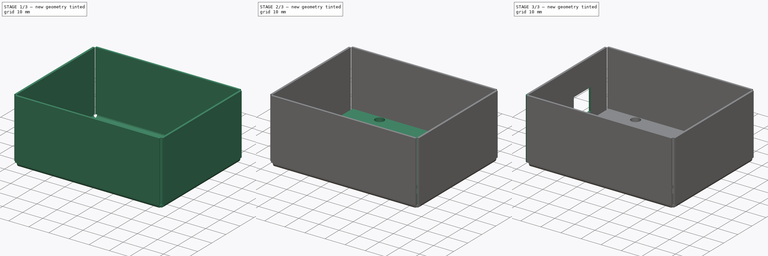
[diagram: build sequence overview — one tinted view per stage of 3, left to right]
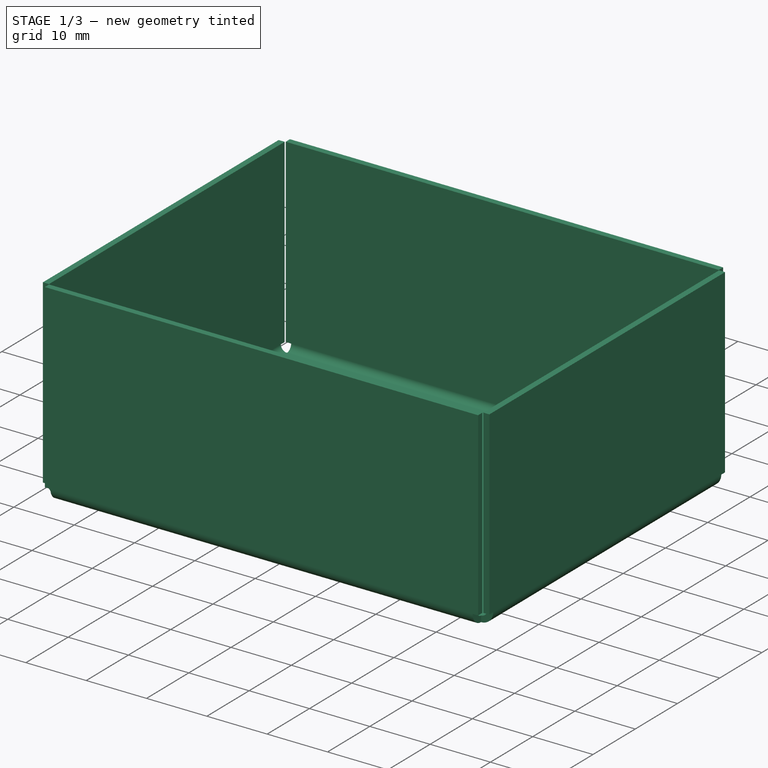
[diagram: stage 1 of 3 — iso view after this stage's code; geometry added in this stage tinted green]
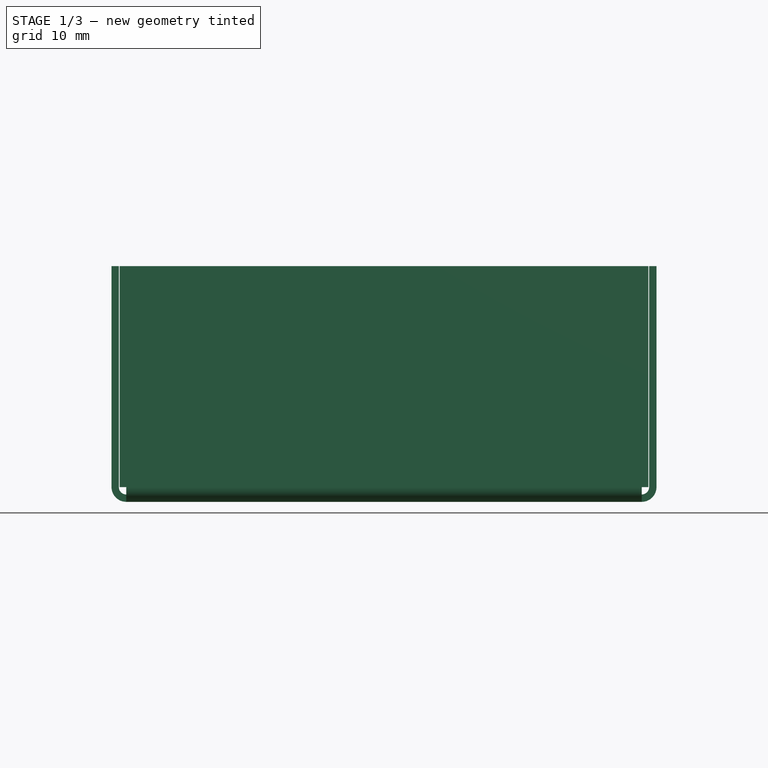
[diagram: stage 1 of 3 — front view after this stage's code; geometry added in this stage tinted green]
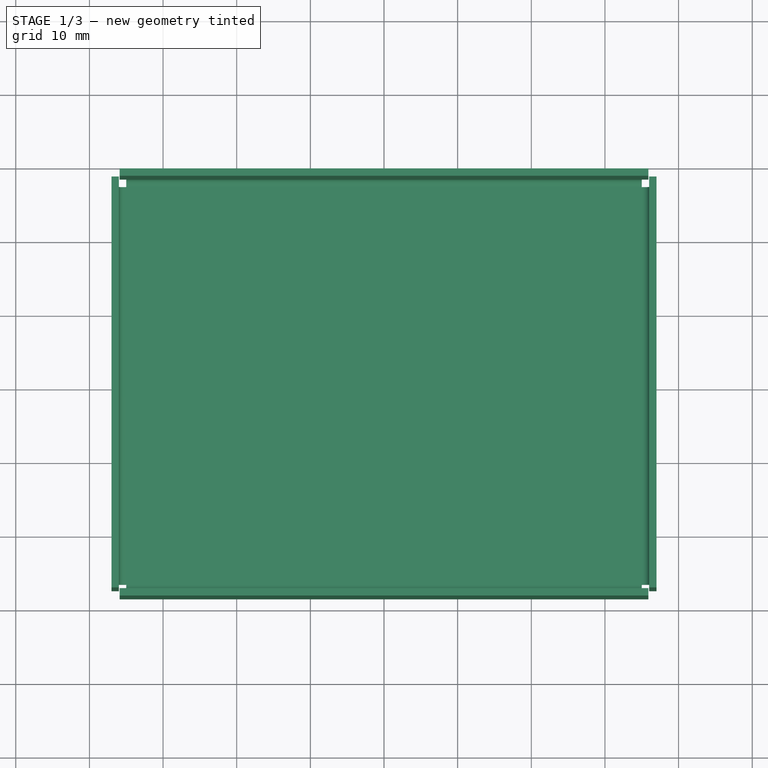
[diagram: stage 1 of 3 — top view after this stage's code; geometry added in this stage tinted green]
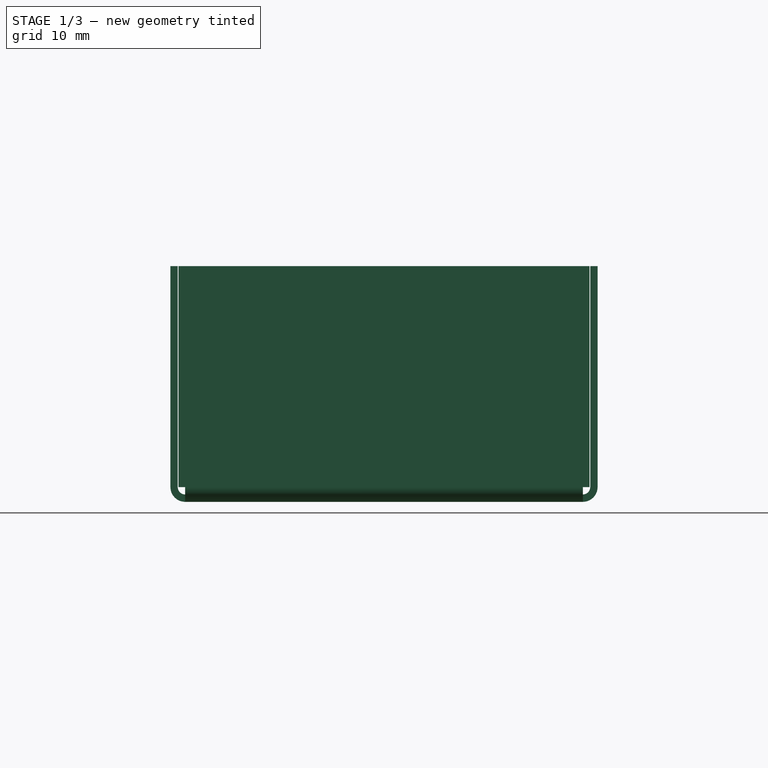
[diagram: stage 1 of 3 — right view after this stage's code; geometry added in this stage tinted green]
FCSTD DOCUMENT  (FreeCAD 0.20R29603 (Git))
Label: Arduino Sheet Metal Enclosure
License: All rights reserved
LicenseURL: http://en.wikipedia.org/wiki/All_rights_reserved
objects: Sketcher::SketchObject×4, PartDesign::Pad×2, PartDesign::FeaturePython×2, PartDesign::Pocket×2, PartDesign::Body×1, App::Part×1
note: 15 computed .brp shape members not serialized (recipe doc carries the construction recipe); baked Part::Feature solids carry a one-line shape summary decoded from their .brp

FEATURE [Sketcher::SketchObject] Sketch
  FullyConstrained = true
  MapMode = 5
  Support = -> [XY_Plane]
  sketch-geometry (4):
    g0: LineSegment StartX=-35 StartY=27.5 StartZ=0 EndX=35 EndY=27.5 EndZ=0
    g1: LineSegment StartX=35 StartY=27.5 StartZ=0 EndX=35 EndY=-26.5 EndZ=0
    g2: LineSegment StartX=35 StartY=-26.5 StartZ=0 EndX=-35 EndY=-26.5 EndZ=0
    g3: LineSegment StartX=-35 StartY=-26.5 StartZ=0 EndX=-35 EndY=27.5 EndZ=0
  constraints (12):
    c: Coincident(g0,g1)
    c: Coincident(g1,g2)
    c: Coincident(g2,g3)
    c: Coincident(g3,g0)
    c: Horizontal(g0)
    c: Horizontal(g2)
    c: Vertical(g1)
    c: Vertical(g3)
    c: DistanceX(g0,g0) = 70
    c: DistanceY(g1,g1) = 54
    c: DistanceY(g1,g-1) = 26.5
    c: DistanceX(g0,g-1) = 35
FEATURE [PartDesign::Pad] Pad
  Direction = (0,0,1)
  Length = 1
  Length2 = 10
  Profile = -> Sketch
  ReferenceAxis = -> Sketch [N_Axis]
  Type = 0
FEATURE [PartDesign::FeaturePython] Bend  # WARN: FeaturePython — macro-defined, semantics opaque (R4)
  AutoMiter = true
  BaseFeature = -> Pad
  BendType = 0
  LengthList = [30]
  LengthSpec = 0
  ReliefFactor = 0.7
  UseReliefFactor = false
  angle = 90
  baseObject = -> Pad [Face3,Face4,Face1,Face2]
  bendAList = [90]
  extend1 = 0
  extend2 = 0
  gap1 = 0
  gap2 = 0
  invert = false
  kfactor = 0.5
  length = 30
  maxExtendDist = 5
  minGap = 0.1
  minReliefGap = 1
  miterangle1 = 0
  miterangle2 = 0
  offset = 0
  radius = 1
  reliefType = 0
  reliefd = 1
  reliefw = 0.8
  sketchflip = false
  sketchinvert = false
  unfold = false
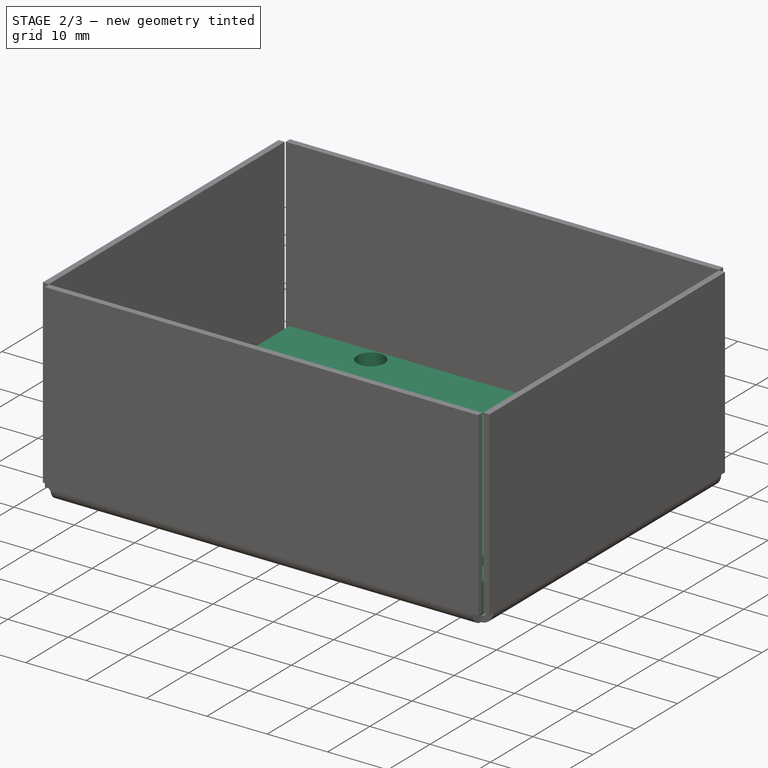
[diagram: stage 2 of 3 — iso view after this stage's code; geometry added in this stage tinted green]
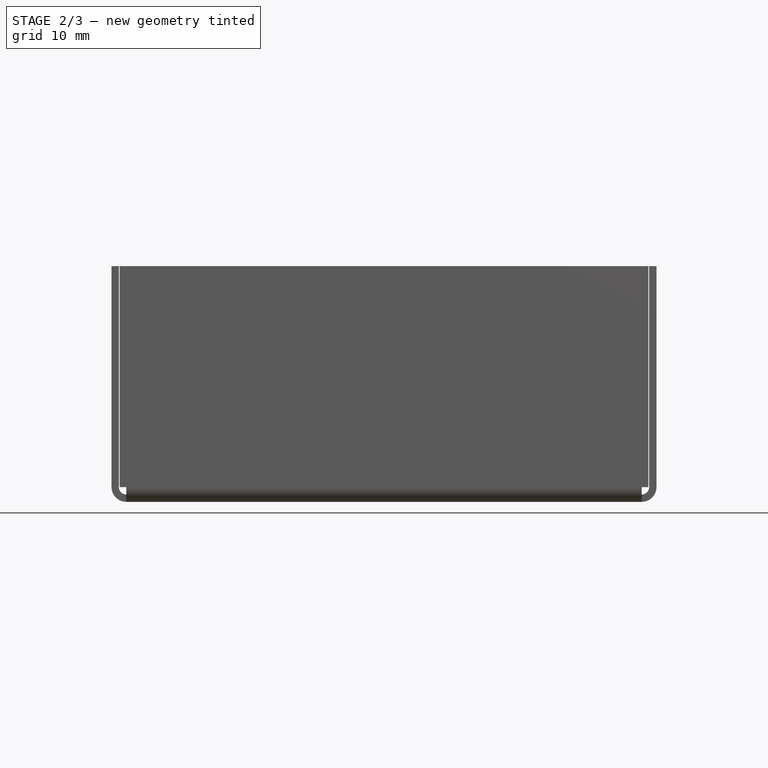
[diagram: stage 2 of 3 — front view after this stage's code; geometry added in this stage tinted green]
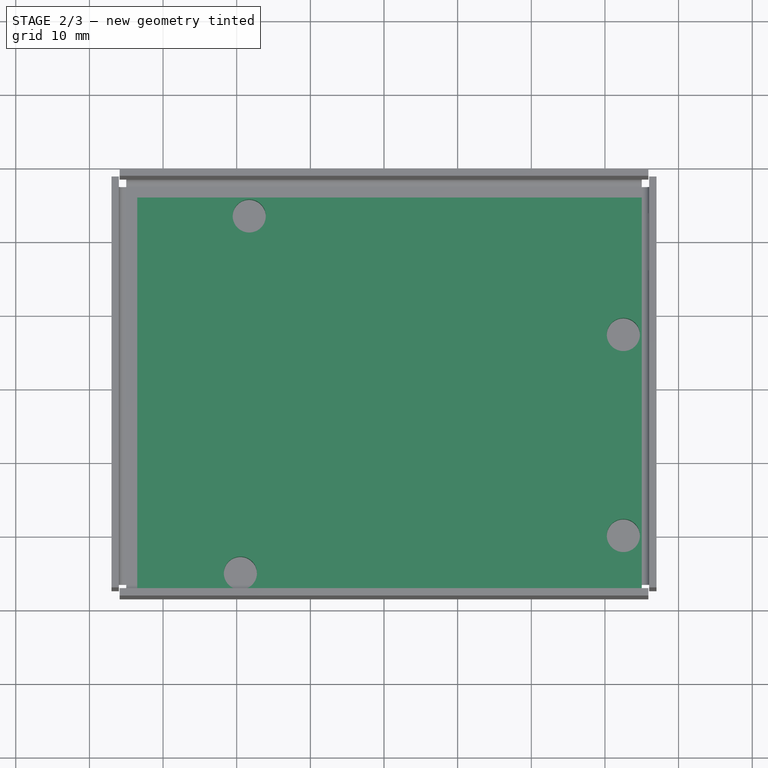
[diagram: stage 2 of 3 — top view after this stage's code; geometry added in this stage tinted green]
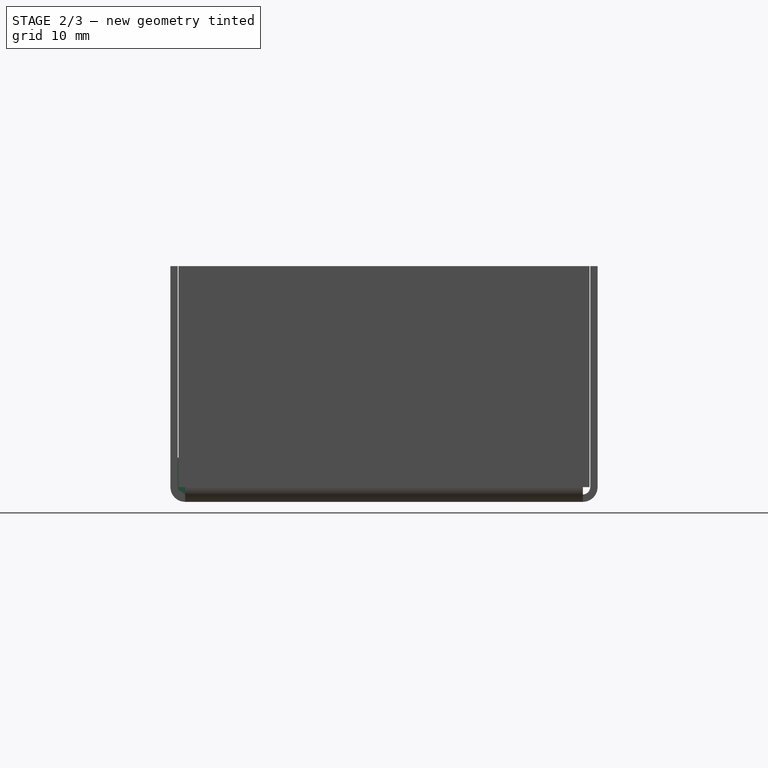
[diagram: stage 2 of 3 — right view after this stage's code; geometry added in this stage tinted green]
FEATURE [Sketcher::SketchObject] Sketch002
  FullyConstrained = false
  MapMode = 5
  Placement = pos=(35.9,-9.5e-14,0) rot=(0.57735,0.57735,0.57735;2.0944rad)
  sketch-geometry (8):
    g0: LineSegment StartX=-7.4 StartY=20.4367 StartZ=0 EndX=-7.4 EndY=9.43671 EndZ=0
    g1: LineSegment StartX=-7.4 StartY=20.4367 StartZ=0 EndX=-20.4 EndY=20.4367 EndZ=0
    g2: LineSegment StartX=-20.4 StartY=20.4367 StartZ=0 EndX=-20.4 EndY=9.43671 EndZ=0
    g3: LineSegment StartX=-20.4 StartY=9.43671 StartZ=0 EndX=-7.4 EndY=9.43671 EndZ=0
    g4: LineSegment StartX=16.2 StartY=12.7 StartZ=0 EndX=23.9605 EndY=12.7 EndZ=0
    g5: LineSegment StartX=23.9605 StartY=12.7 StartZ=0 EndX=23.9605 EndY=1.5 EndZ=0
    g6: LineSegment StartX=23.9605 StartY=1.5 StartZ=0 EndX=16.2 EndY=1.5 EndZ=0
    g7: LineSegment StartX=16.2 StartY=1.5 StartZ=0 EndX=16.2 EndY=12.7 EndZ=0
  constraints (19):
    c: Horizontal(g1)
    c: DistanceX(g1,g1) = 13
    c: Coincident(g2,g1)
    c: Vertical(g2)
    c: DistanceY(g2,g2) = 11
    c: Coincident(g3,g2)
    c: Coincident(g3,g0)
    c: Horizontal(g3)
    c: Coincident(g0,g1)
    c: Coincident(g4,g5)
    c: Coincident(g5,g6)
    c: Coincident(g6,g7)
    c: Coincident(g7,g4)
    c: Horizontal(g4)
    c: Horizontal(g6)
    c: Vertical(g5)
    c: Vertical(g7)
    c: DistanceY(g7,g7) = 11.2
    c: Vertical(g0,g0)
FEATURE [PartDesign::Pocket] Pocket
  BaseFeature = -> Bend
  Direction = (-1,3.1e-15,0)
  Length = 5
  Length2 = 5
  Profile = -> Sketch002
  ReferenceAxis = -> Sketch002 [N_Axis]
  Type = 0
FEATURE [Sketcher::SketchObject] MirroredSketch
  FullyConstrained = false
  Placement = pos=(0,0,1) rot=(0,0,1;0rad)
  sketch-geometry (8):
    g0: LineSegment StartX=35 StartY=-27.5 StartZ=0 EndX=-33.5 EndY=-27.5 EndZ=0
    g1: LineSegment StartX=-33.5 StartY=-27.5 StartZ=0 EndX=-33.5 EndY=26 EndZ=0
    g2: LineSegment StartX=-33.5 StartY=26 StartZ=0 EndX=35 EndY=26 EndZ=0
    g3: LineSegment StartX=35 StartY=26 StartZ=0 EndX=35 EndY=-27.5 EndZ=0
    g4: Circle CenterX=-19.5 CenterY=-25 CenterZ=0 NormalX=0 NormalY=0 NormalZ=1 AngleXU=0 Radius=2.25
    g5: Circle CenterX=-18.3 CenterY=23.5 CenterZ=0 NormalX=0 NormalY=0 NormalZ=1 AngleXU=0 Radius=2.25
    g6: Circle CenterX=32.5 CenterY=7.4 CenterZ=0 NormalX=0 NormalY=0 NormalZ=1 AngleXU=0 Radius=2.25
    g7: Circle CenterX=32.5 CenterY=-19.9 CenterZ=0 NormalX=0 NormalY=0 NormalZ=1 AngleXU=0 Radius=2.25
  constraints (12):
    c: Coincident(g0,g1)
    c: Coincident(g1,g2)
    c: Coincident(g2,g3)
    c: Coincident(g3,g0)
    c: Horizontal(g0)
    c: Horizontal(g2)
    c: Vertical(g1)
    c: Vertical(g3)
    c: Diameter(g4) = 4.5
    c: Equal(g4,g5)
    c: Equal(g5,g6)
    c: Equal(g6,g7)
FEATURE [PartDesign::Pad] Pad001
  BaseFeature = -> Pocket
  Direction = (0,0,1)
  Length = 5
  Length2 = 10
  Profile = -> MirroredSketch
  ReferenceAxis = -> MirroredSketch [N_Axis]
  Type = 0
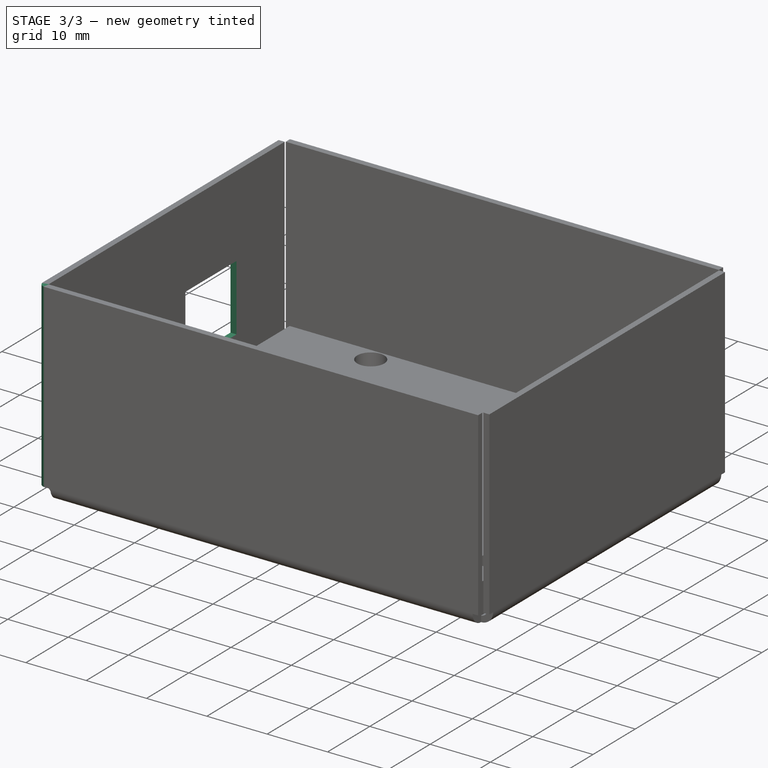
[diagram: stage 3 of 3 — iso view after this stage's code; geometry added in this stage tinted green]
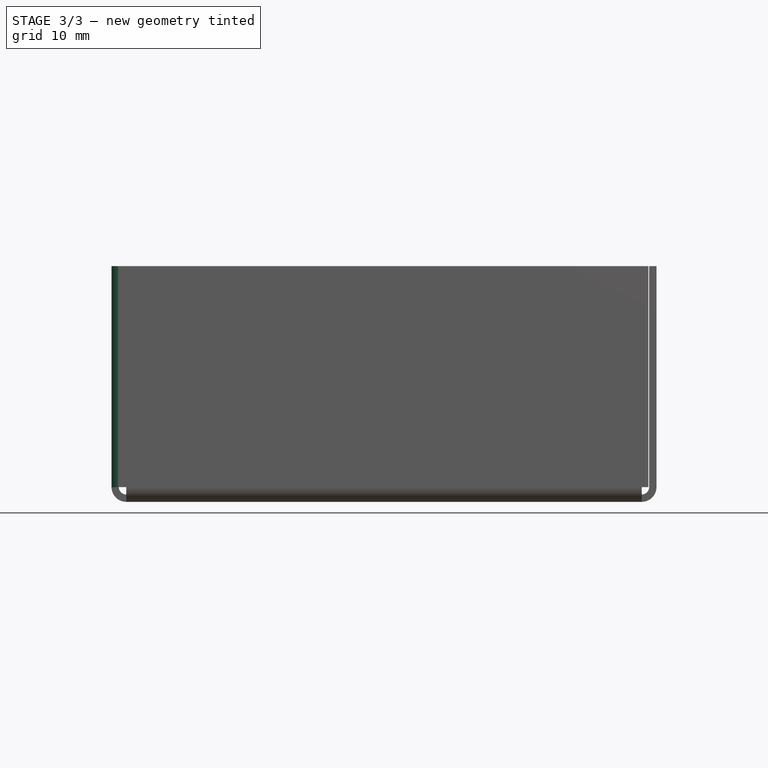
[diagram: stage 3 of 3 — front view after this stage's code; geometry added in this stage tinted green]
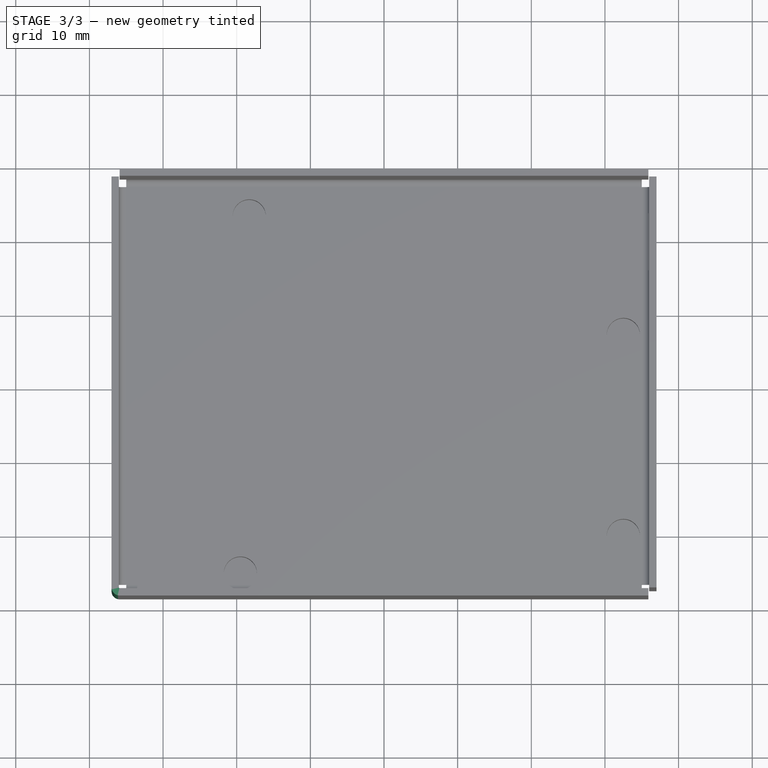
[diagram: stage 3 of 3 — top view after this stage's code; geometry added in this stage tinted green]
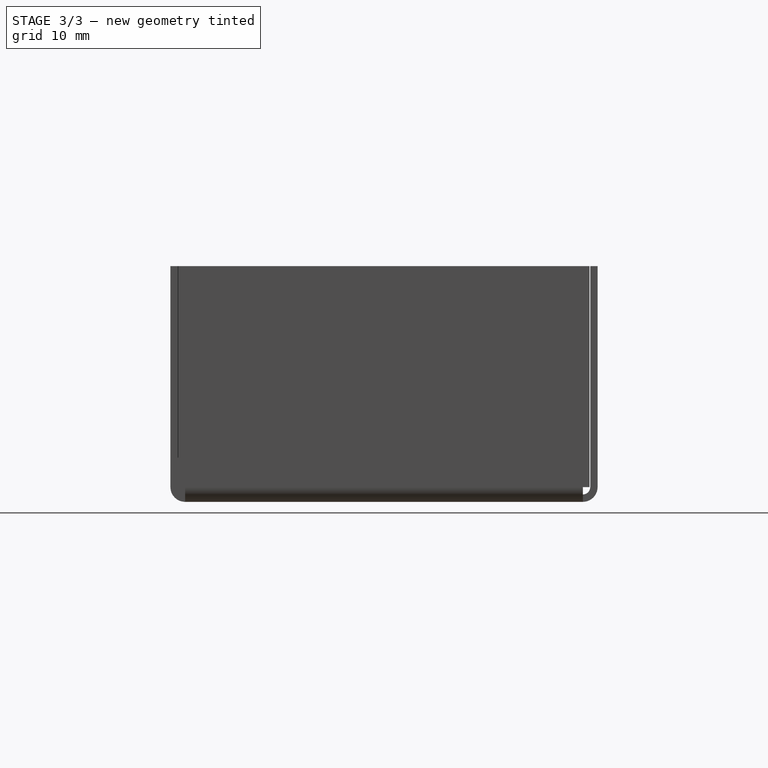
[diagram: stage 3 of 3 — right view after this stage's code; geometry added in this stage tinted green]
FEATURE [Sketcher::SketchObject] Sketch003
  ExternalGeometry = -> [Pad001]
  FullyConstrained = true
  MapMode = 5
  Placement = pos=(-37,0,0) rot=(0.57735,-0.57735,-0.57735;2.0944rad)
  Support = -> [Pad001]
  sketch-geometry (8):
    g0: LineSegment StartX=-17 StartY=18.5 StartZ=0 EndX=-4.9 EndY=18.5 EndZ=0
    g1: LineSegment StartX=-4.9 StartY=18.5 StartZ=0 EndX=-4.9 EndY=7.5 EndZ=0
    g2: LineSegment StartX=-4.9 StartY=7.5 StartZ=0 EndX=-17 EndY=7.5 EndZ=0
    g3: LineSegment StartX=-17 StartY=7.5 StartZ=0 EndX=-17 EndY=18.5 EndZ=0
    g4: LineSegment StartX=15.2 StartY=19.73 StartZ=0 EndX=23.7 EndY=19.73 EndZ=0
    g5: LineSegment StartX=23.7 StartY=19.73 StartZ=0 EndX=23.7 EndY=7.73 EndZ=0
    g6: LineSegment StartX=23.7 StartY=7.73 StartZ=0 EndX=15.2 EndY=7.73 EndZ=0
    g7: LineSegment StartX=15.2 StartY=7.73 StartZ=0 EndX=15.2 EndY=19.73 EndZ=0
  constraints (24):
    c: Coincident(g0,g1)
    c: Coincident(g1,g2)
    c: Coincident(g2,g3)
    c: Coincident(g3,g0)
    c: Horizontal(g0)
    c: Horizontal(g2)
    c: Vertical(g1)
    c: Vertical(g3)
    c: Coincident(g4,g5)
    c: Coincident(g5,g6)
    c: Coincident(g6,g7)
    c: Coincident(g7,g4)
    c: Horizontal(g4)
    c: Horizontal(g6)
    c: Vertical(g5)
    c: Vertical(g7)
    c: DistanceX(g-5,g2) = 9
    c: DistanceX(g0,g0) = 12.1
    c: DistanceY(g-5,g2) = 1.5
    c: DistanceY(g3,g3) = 11
    c: DistanceY(g-6,g5) = 1.73
    c: DistanceY(g5,g5) = 12
    c: DistanceX(g4,g4) = 8.5
    c: DistanceX(g1,g6) = 20.1
FEATURE [PartDesign::Pocket] Pocket001
  BaseFeature = -> Pad001
  Direction = (1,0,0)
  Length = 5
  Length2 = 5
  Profile = -> Sketch003
  ReferenceAxis = -> Sketch003 [N_Axis]
  Type = 0
FEATURE [PartDesign::FeaturePython] Bend001  # WARN: FeaturePython — macro-defined, semantics opaque (R4)
  AutoMiter = true
  BaseFeature = -> Pocket001
  BendType = 0
  LengthList = [1]
  LengthSpec = 0
  ReliefFactor = 0.7
  UseReliefFactor = false
  angle = 90
  baseObject = -> Pocket001 [Face44,Face59]
  bendAList = [90]
  extend1 = 0
  extend2 = 0
  gap1 = 0
  gap2 = 0
  invert = false
  kfactor = 0.5
  length = 1
  maxExtendDist = 5
  minGap = 0.1
  minReliefGap = 1
  miterangle1 = 0
  miterangle2 = 0
  offset = 0
  radius = 0.1
  reliefType = 0
  reliefd = 1
  reliefw = 0.8
  sketchflip = false
  sketchinvert = false
  unfold = false
FEATURE [PartDesign::Body] Body
  Group = -> [Sketch,Pad,Bend,Sketch002,Pocket,MirroredSketch,Pad001,Sketch003,Pocket001,Bend001]
  Origin = -> Origin
  Tip = -> Bend001
FEATURE [App::Part] Part
  Group = -> [Body]
  Origin = -> Origin001
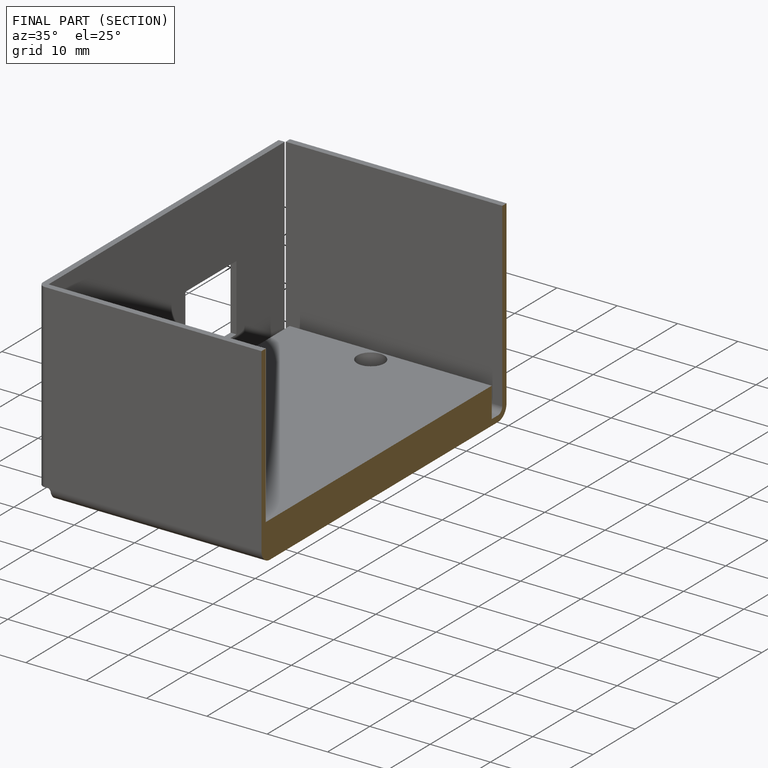
[diagram: finished part — half-section view (interior)]
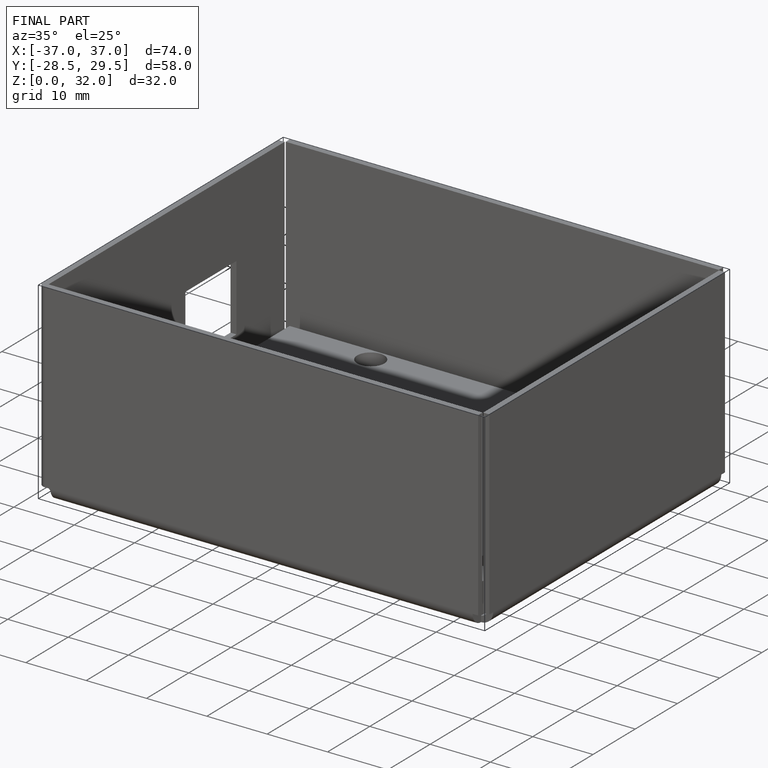
[diagram: finished part — iso view with bounding-box wireframe]
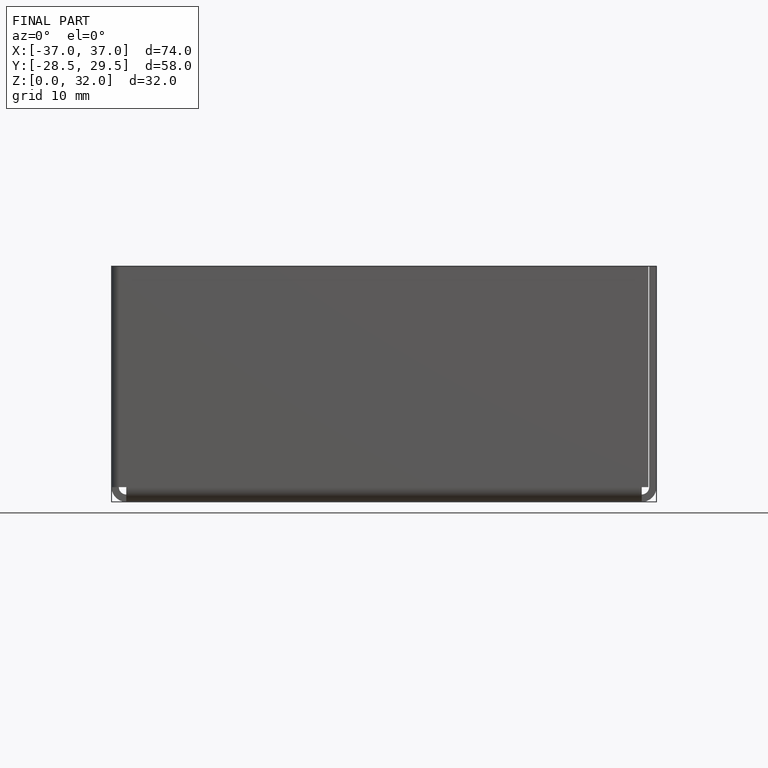
[diagram: finished part — front view with bounding-box wireframe]
